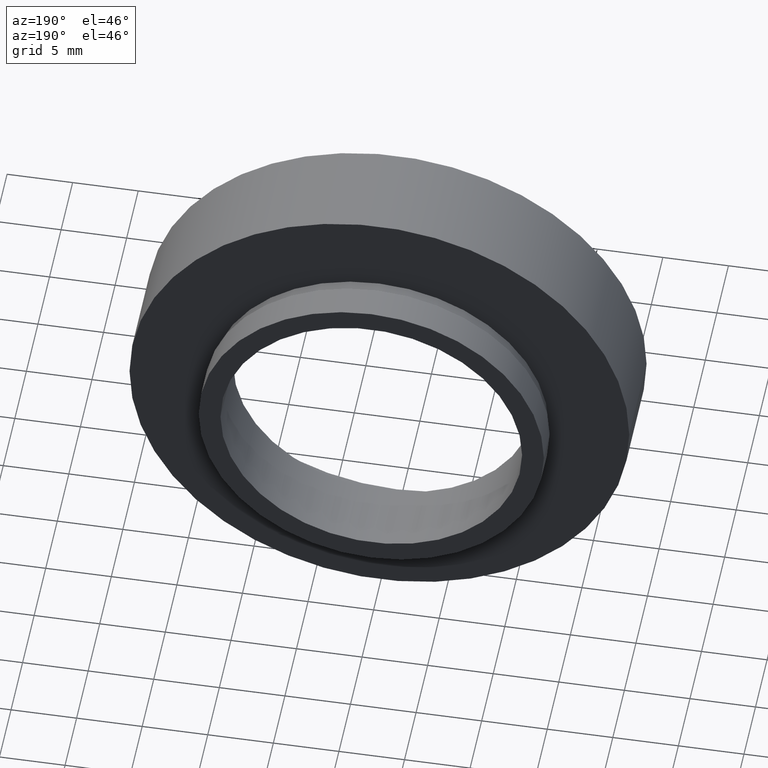
[diagram: clean part render]
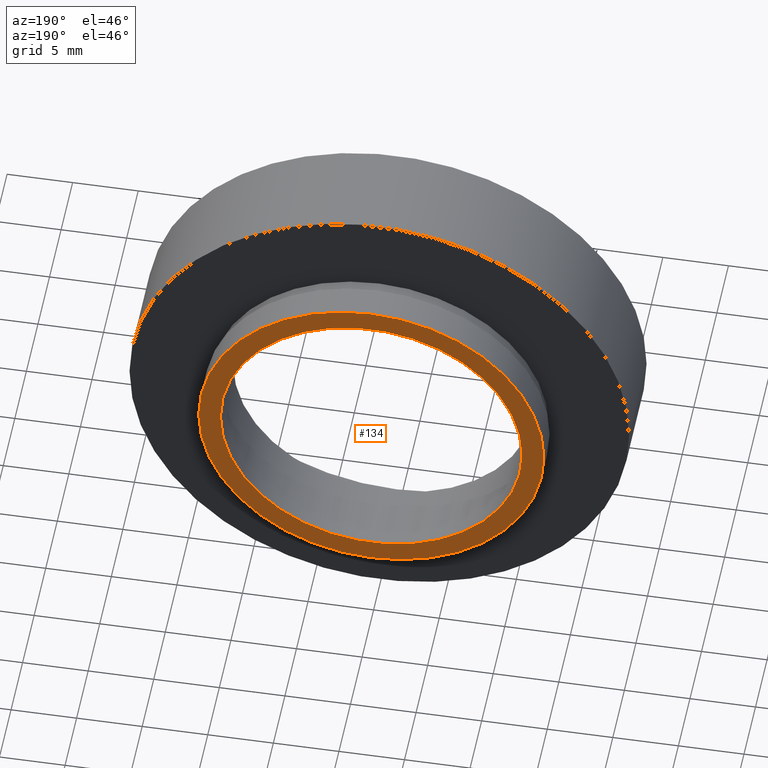
[diagram: same view with one face highlighted and labeled with its STEP entity id]
A machine part, auxiliary view. The second image highlights one B-rep face of the part: STEP entity #134.
In plain terms, the highlighted planar face has unit normal (0, -1, 0).
Its self-contained STEP definition (entity closure, byte-faithful):
#3 = DIRECTION ( 'NONE',  ( -1.000000000000000000, -1.318178933113075200E-016, 0.0000000000000000000 ) ) ;
#21 = EDGE_CURVE ( 'NONE', #272, #536, #431, .T. ) ;
#44 = EDGE_CURVE ( 'NONE', #178, #269, #619, .T. ) ;
#77 = AXIS2_PLACEMENT_3D ( 'NONE', #463, #315, #553 ) ;
#113 = CARTESIAN_POINT ( 'NONE',  ( 7.208293393765502500E-016, 10.99999999999999600, 0.0000000000000000000 ) ) ;
#125 = ORIENTED_EDGE ( 'NONE', *, *, #422, .T. ) ;
#129 = CIRCLE ( 'NONE', #244, 13.16000000000000000 ) ;
#134 = ADVANCED_FACE ( 'NONE', ( #472, #169 ), #278, .F. ) ;
#138 = DIRECTION ( 'NONE',  ( -1.224646799147351000E-016, 1.000000000000000000, -0.0000000000000000000 ) ) ;
#139 = CIRCLE ( 'NONE', #208, 11.50000000000000200 ) ;
#159 = DIRECTION ( 'NONE',  ( -1.000000000000000000, -1.508455196501571200E-016, 0.0000000000000000000 ) ) ;
#169 = FACE_OUTER_BOUND ( 'NONE', #450, .T. ) ;
#178 = VERTEX_POINT ( 'NONE', #279 ) ;
#191 = DIRECTION ( 'NONE',  ( 1.224646799147351000E-016, -1.000000000000000000, 0.0000000000000000000 ) ) ;
#206 = DIRECTION ( 'NONE',  ( -1.224646799147351000E-016, 1.000000000000000000, -0.0000000000000000000 ) ) ;
#208 = AXIS2_PLACEMENT_3D ( 'NONE', #544, #206, #159 ) ;
#234 = DIRECTION ( 'NONE',  ( 1.000000000000000000, 1.224646799147351000E-016, 0.0000000000000000000 ) ) ;
#244 = AXIS2_PLACEMENT_3D ( 'NONE', #113, #540, #3 ) ;
#262 = ORIENTED_EDGE ( 'NONE', *, *, #394, .F. ) ;
#269 = VERTEX_POINT ( 'NONE', #492 ) ;
#272 = VERTEX_POINT ( 'NONE', #389 ) ;
#278 = PLANE ( 'NONE',  #610 ) ;
#279 = CARTESIAN_POINT ( 'NONE',  ( 11.50000000000000200, 10.99999999999999800, 1.408343819019456600E-015 ) ) ;
#315 = DIRECTION ( 'NONE',  ( -1.224646799147351000E-016, 1.000000000000000000, -0.0000000000000000000 ) ) ;
#321 = ORIENTED_EDGE ( 'NONE', *, *, #21, .T. ) ;
#324 = AXIS2_PLACEMENT_3D ( 'NONE', #455, #138, #423 ) ;
#389 = CARTESIAN_POINT ( 'NONE',  ( 13.16000000000000200, 10.99999999999999800, 1.611635187677917100E-015 ) ) ;
#394 = EDGE_CURVE ( 'NONE', #269, #178, #139, .T. ) ;
#407 = EDGE_LOOP ( 'NONE', ( #262, #527 ) ) ;
#422 = EDGE_CURVE ( 'NONE', #536, #272, #129, .T. ) ;
#423 = DIRECTION ( 'NONE',  ( -1.000000000000000000, -1.318178933113075200E-016, 0.0000000000000000000 ) ) ;
#431 = CIRCLE ( 'NONE', #324, 13.16000000000000000 ) ;
#450 = EDGE_LOOP ( 'NONE', ( #125, #321 ) ) ;
#453 = CARTESIAN_POINT ( 'NONE',  ( -13.16000000000000000, 10.99999999999999500, 0.0000000000000000000 ) ) ;
#455 = CARTESIAN_POINT ( 'NONE',  ( 7.208293393765502500E-016, 10.99999999999999600, 0.0000000000000000000 ) ) ;
#463 = CARTESIAN_POINT ( 'NONE',  ( 7.208293393765502500E-016, 10.99999999999999600, 0.0000000000000000000 ) ) ;
#472 = FACE_BOUND ( 'NONE', #407, .T. ) ;
#492 = CARTESIAN_POINT ( 'NONE',  ( -11.50000000000000200, 10.99999999999999500, 0.0000000000000000000 ) ) ;
#527 = ORIENTED_EDGE ( 'NONE', *, *, #44, .F. ) ;
#536 = VERTEX_POINT ( 'NONE', #453 ) ;
#540 = DIRECTION ( 'NONE',  ( -1.224646799147351000E-016, 1.000000000000000000, -0.0000000000000000000 ) ) ;
#544 = CARTESIAN_POINT ( 'NONE',  ( 7.208293393765502500E-016, 10.99999999999999600, 0.0000000000000000000 ) ) ;
#553 = DIRECTION ( 'NONE',  ( -1.000000000000000000, -1.508455196501571200E-016, 0.0000000000000000000 ) ) ;
#576 = CARTESIAN_POINT ( 'NONE',  ( 11.50000000000000200, 10.99999999999999800, 0.0000000000000000000 ) ) ;
#610 = AXIS2_PLACEMENT_3D ( 'NONE', #576, #191, #234 ) ;
#619 = CIRCLE ( 'NONE', #77, 11.50000000000000200 ) ;